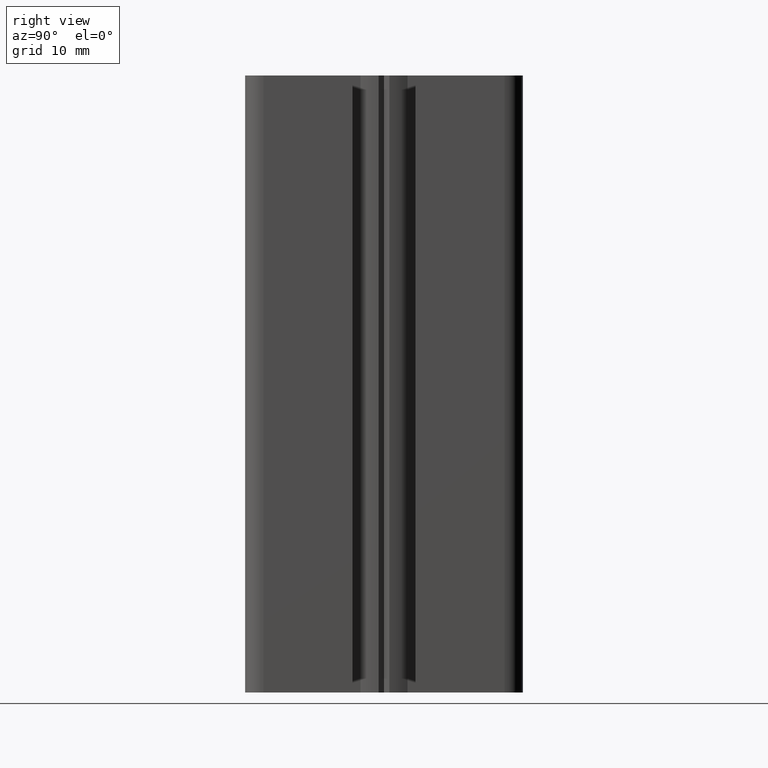
[diagram: clean part render]
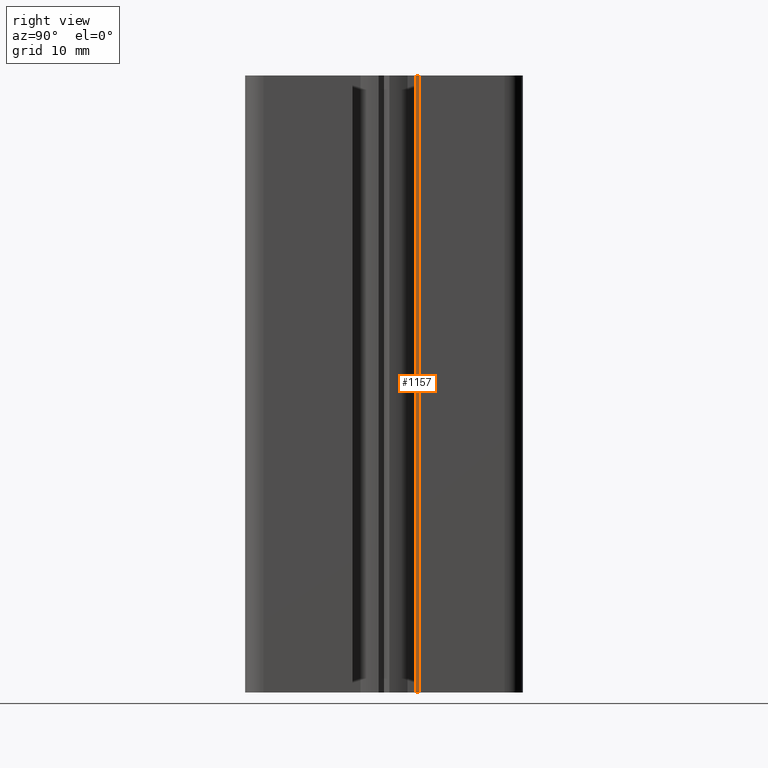
[diagram: same view with one face highlighted and labeled with its STEP entity id]
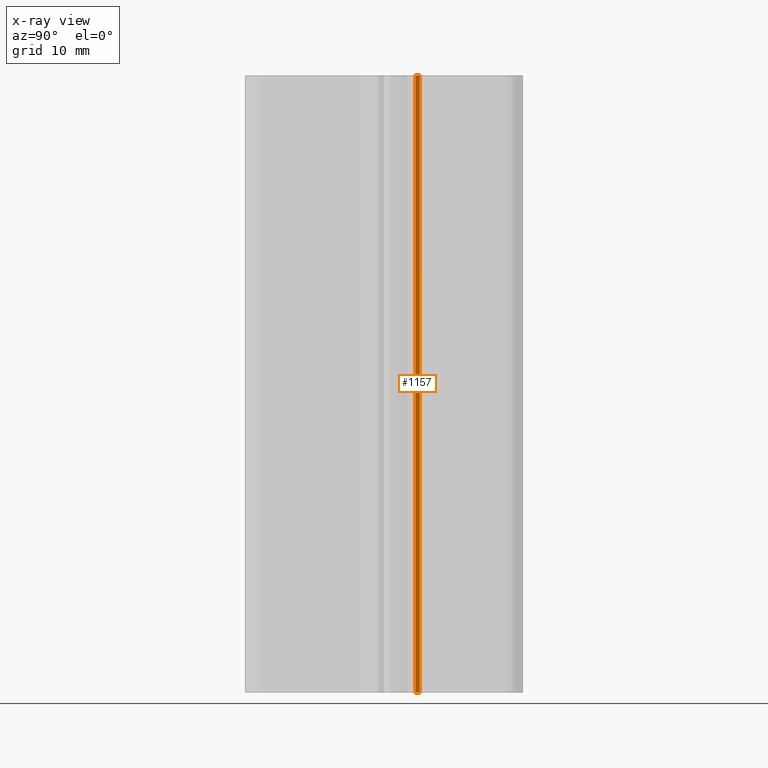
[diagram: x-ray of the same camera — body ghosted, the highlighted face saturated]
A machine part, right view. The second image highlights one B-rep face of the part: STEP entity #1157.
The next image is the same camera in x-ray: the body ghosted, the highlighted face saturated — about 0% of this face is hidden behind the body in this view.
In plain terms, the highlighted planar face has unit normal (-1, 0, 0).
Its self-contained STEP definition (entity closure, byte-faithful):
#881 = EDGE_CURVE ( 'NONE', #917, #912, #3210, .T. ) ;
#912 = VERTEX_POINT ( 'NONE', #3230 ) ;
#917 = VERTEX_POINT ( 'NONE', #3268 ) ;
#1155 = EDGE_CURVE ( 'NONE', #912, #1581, #3643, .T. ) ;
#1156 = ORIENTED_EDGE ( 'NONE', *, *, #1155, .F. ) ;
#1157 = ADVANCED_FACE ( 'NONE', ( #3605 ), #3637, .F. ) ;
#1158 = ORIENTED_EDGE ( 'NONE', *, *, #1651, .T. ) ;
#1160 = ORIENTED_EDGE ( 'NONE', *, *, #1172, .T. ) ;
#1161 = ORIENTED_EDGE ( 'NONE', *, *, #881, .F. ) ;
#1172 = EDGE_CURVE ( 'NONE', #917, #1686, #3665, .T. ) ;
#1175 = EDGE_LOOP ( 'NONE', ( #1158, #1156, #1161, #1160 ) ) ;
#1581 = VERTEX_POINT ( 'NONE', #4255 ) ;
#1651 = EDGE_CURVE ( 'NONE', #1686, #1581, #4443, .T. ) ;
#1686 = VERTEX_POINT ( 'NONE', #4491 ) ;
#3207 = DIRECTION ( 'NONE',  ( -0.0000000000000000000, 1.000000000000000000, -0.0000000000000000000 ) ) ;
#3208 = VECTOR ( 'NONE', #3207, 1000.000000000000000 ) ;
#3209 = CARTESIAN_POINT ( 'NONE',  ( 21.00000000000000000, 5.799999000000008600, 100.0000000000000000 ) ) ;
#3210 = LINE ( 'NONE', #3209, #3208 ) ;
#3230 = CARTESIAN_POINT ( 'NONE',  ( 21.00000000000000000, 5.799999000000008600, 100.0000000000000000 ) ) ;
#3268 = CARTESIAN_POINT ( 'NONE',  ( 21.00000000000000000, 5.099999999999997000, 100.0000000000000000 ) ) ;
#3600 = AXIS2_PLACEMENT_3D ( 'NONE', #3636, #3629, #3628 ) ;
#3605 = FACE_OUTER_BOUND ( 'NONE', #1175, .T. ) ;
#3628 = DIRECTION ( 'NONE',  ( 0.0000000000000000000, 0.0000000000000000000, 1.000000000000000000 ) ) ;
#3629 = DIRECTION ( 'NONE',  ( -1.000000000000000000, 0.0000000000000000000, 0.0000000000000000000 ) ) ;
#3635 = DIRECTION ( 'NONE',  ( -0.0000000000000000000, -0.0000000000000000000, -1.000000000000000000 ) ) ;
#3636 = CARTESIAN_POINT ( 'NONE',  ( 21.00000000000000000, 5.799999000000008600, 100.0000000000000000 ) ) ;
#3637 = PLANE ( 'NONE',  #3600 ) ;
#3641 = VECTOR ( 'NONE', #3635, 1000.000000000000000 ) ;
#3642 = CARTESIAN_POINT ( 'NONE',  ( 21.00000000000000000, 5.799999000000008600, 100.0000000000000000 ) ) ;
#3643 = LINE ( 'NONE', #3642, #3641 ) ;
#3662 = DIRECTION ( 'NONE',  ( -0.0000000000000000000, -0.0000000000000000000, -1.000000000000000000 ) ) ;
#3663 = VECTOR ( 'NONE', #3662, 1000.000000000000000 ) ;
#3664 = CARTESIAN_POINT ( 'NONE',  ( 21.00000000000000000, 5.099999999999997000, 100.0000000000000000 ) ) ;
#3665 = LINE ( 'NONE', #3664, #3663 ) ;
#4255 = CARTESIAN_POINT ( 'NONE',  ( 21.00000000000000000, 5.799999000000008600, 0.0000000000000000000 ) ) ;
#4439 = DIRECTION ( 'NONE',  ( -0.0000000000000000000, 1.000000000000000000, -0.0000000000000000000 ) ) ;
#4440 = VECTOR ( 'NONE', #4439, 1000.000000000000000 ) ;
#4441 = CARTESIAN_POINT ( 'NONE',  ( 21.00000000000000000, 5.799999000000008600, 0.0000000000000000000 ) ) ;
#4443 = LINE ( 'NONE', #4441, #4440 ) ;
#4491 = CARTESIAN_POINT ( 'NONE',  ( 21.00000000000000000, 5.099999999999997000, 0.0000000000000000000 ) ) ;